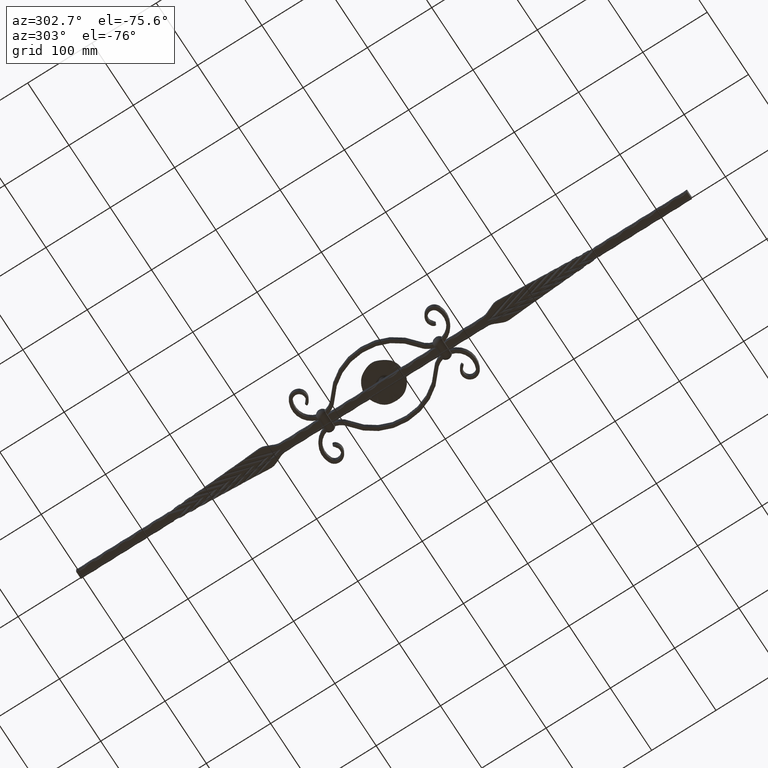
[diagram: clean part render]
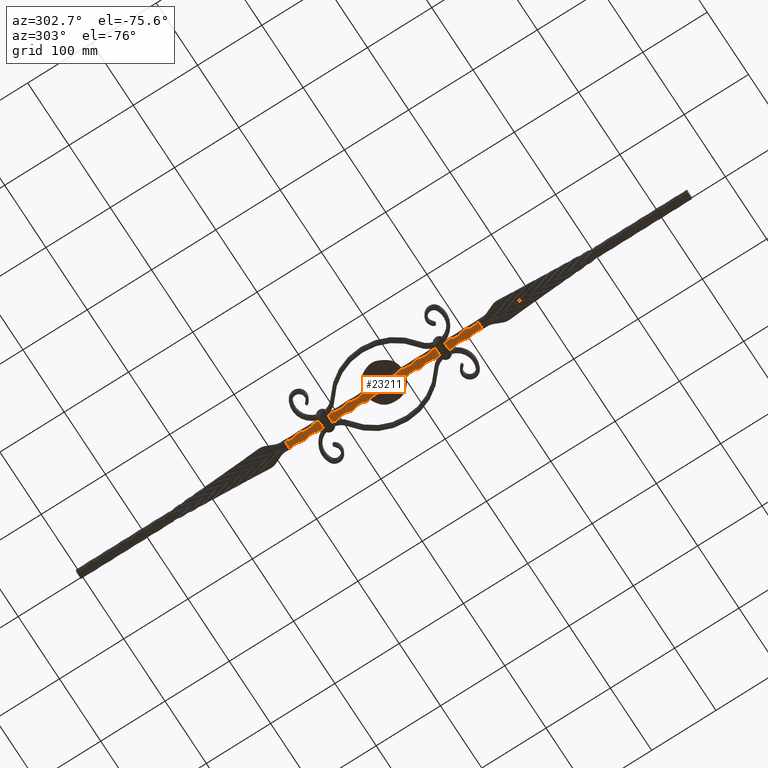
[diagram: same view with one face highlighted and labeled with its STEP entity id]
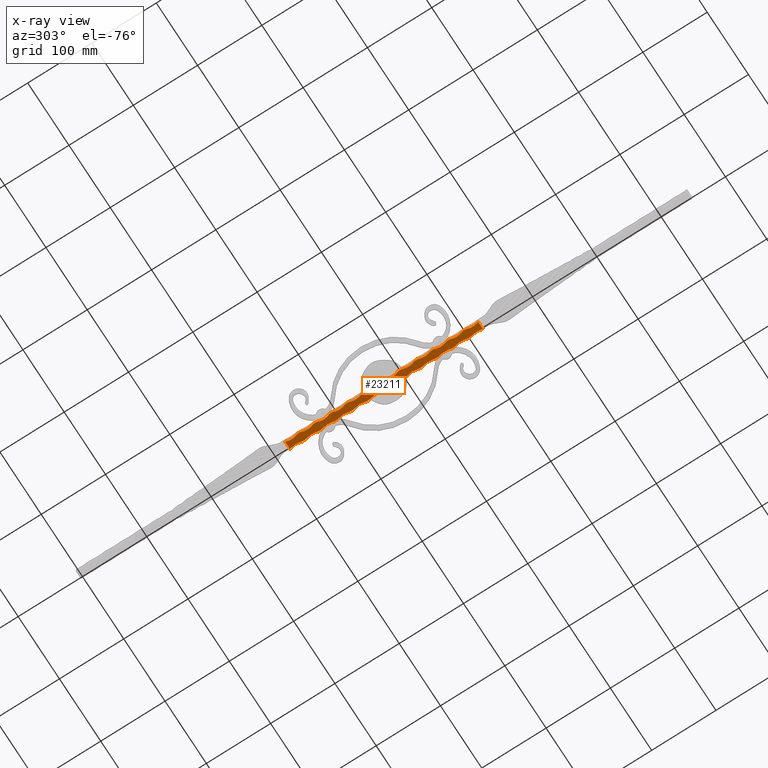
[diagram: x-ray of the same camera — body ghosted, the highlighted face saturated]
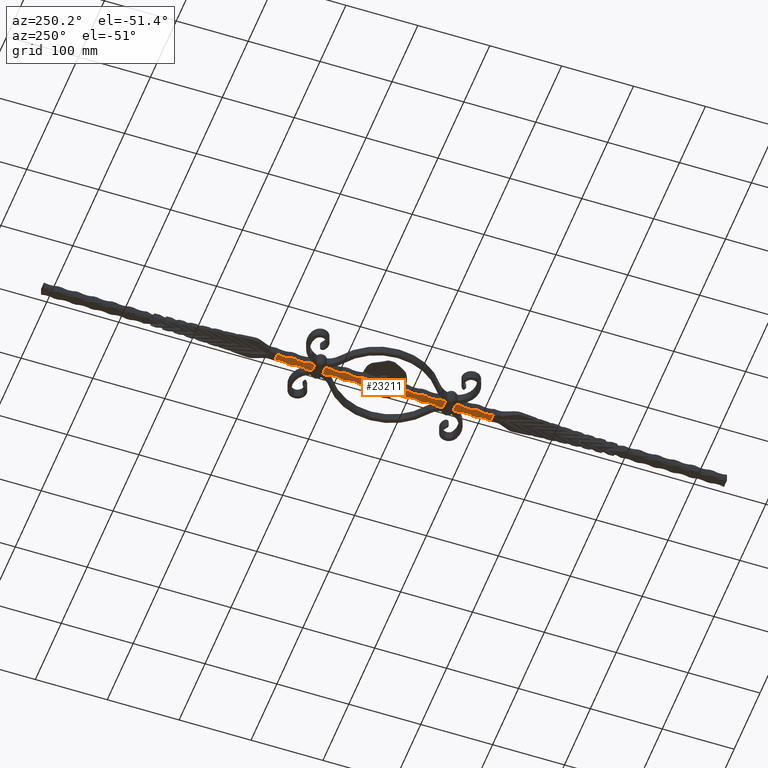
[diagram: same view with one face highlighted and labeled with its STEP entity id]
A machine part, auxiliary view. The second image highlights one B-rep face of the part: STEP entity #23211.
The next image is the same camera in x-ray: the body ghosted, the highlighted face saturated — about 0% of this face is hidden behind the body in this view.
A second angle (auxiliary view) of the same face is appended — the face is thin or edge-on in the first view.
In plain terms, the highlighted planar face has unit normal (0, 0, 1).
Its self-contained STEP definition (entity closure, byte-faithful):
#117 = EDGE_CURVE ( 'NONE', #36310, #14427, #41905, .T. ) ;
#151 = ORIENTED_EDGE ( 'NONE', *, *, #29066, .T. ) ;
#188 = EDGE_CURVE ( 'NONE', #11714, #45865, #3435, .T. ) ;
#303 = CIRCLE ( 'NONE', #4832, 26.00000000000000711 ) ;
#326 = VERTEX_POINT ( 'NONE', #29395 ) ;
#558 = ORIENTED_EDGE ( 'NONE', *, *, #21915, .T. ) ;
#667 = DIRECTION ( 'NONE',  ( -0.000000000000000000, -1.000000000000000000, 0.000000000000000000 ) ) ;
#698 = LINE ( 'NONE', #40802, #22222 ) ;
#740 = CIRCLE ( 'NONE', #30591, 26.00000000000000711 ) ;
#954 = ORIENTED_EDGE ( 'NONE', *, *, #3204, .T. ) ;
#990 = LINE ( 'NONE', #35383, #7264 ) ;
#1125 = VERTEX_POINT ( 'NONE', #26227 ) ;
#1385 = ORIENTED_EDGE ( 'NONE', *, *, #23293, .F. ) ;
#1483 = DIRECTION ( 'NONE',  ( -1.000000000000000000, 0.000000000000000000, 0.000000000000000000 ) ) ;
#1579 = DIRECTION ( 'NONE',  ( -0.000000000000000000, -1.000000000000000000, 0.000000000000000000 ) ) ;
#1987 = AXIS2_PLACEMENT_3D ( 'NONE', #12479, #5209, #41709 ) ;
#2094 = EDGE_CURVE ( 'NONE', #29439, #38071, #22547, .T. ) ;
#2096 = EDGE_CURVE ( 'NONE', #14012, #35354, #16340, .T. ) ;
#2225 = CIRCLE ( 'NONE', #42020, 26.00000000000000711 ) ;
#2227 = ORIENTED_EDGE ( 'NONE', *, *, #5396, .T. ) ;
#2396 = CARTESIAN_POINT ( 'NONE',  ( -6.000000000000001776, 537.0799999999974261, -6.000000000000012434 ) ) ;
#2589 = CARTESIAN_POINT ( 'NONE',  ( -6.000000000000001776, 612.0799999999977672, -6.000000000000012434 ) ) ;
#2698 = DIRECTION ( 'NONE',  ( -1.000000000000000000, 0.000000000000000000, 0.000000000000000000 ) ) ;
#2703 = VECTOR ( 'NONE', #5050, 1000.000000000000000 ) ;
#2736 = CARTESIAN_POINT ( 'NONE',  ( -6.000000000000001776, 662.0799999999979946, -6.000000000000012434 ) ) ;
#2779 = EDGE_CURVE ( 'NONE', #11721, #3773, #5531, .T. ) ;
#2883 = AXIS2_PLACEMENT_3D ( 'NONE', #4012, #40354, #37206 ) ;
#3021 = AXIS2_PLACEMENT_3D ( 'NONE', #30738, #41474, #44796 ) ;
#3204 = EDGE_CURVE ( 'NONE', #3773, #25899, #37175, .T. ) ;
#3235 = DIRECTION ( 'NONE',  ( -0.000000000000000000, -1.000000000000000000, 0.000000000000000000 ) ) ;
#3400 = LINE ( 'NONE', #14616, #37914 ) ;
#3435 = LINE ( 'NONE', #17462, #6333 ) ;
#3476 = CIRCLE ( 'NONE', #32041, 26.00000000000000711 ) ;
#3613 = CARTESIAN_POINT ( 'NONE',  ( -30.00000000000001066, 622.0799999999998136, -5.999999999999127809 ) ) ;
#3773 = VERTEX_POINT ( 'NONE', #23790 ) ;
#3795 = DIRECTION ( 'NONE',  ( 0.000000000000000000, 0.000000000000000000, 1.000000000000000000 ) ) ;
#4012 = CARTESIAN_POINT ( 'NONE',  ( 30.00000000000001066, 597.0799999999998136, -5.999999999999989342 ) ) ;
#4102 = VECTOR ( 'NONE', #33558, 1000.000000000000000 ) ;
#4307 = VERTEX_POINT ( 'NONE', #40106 ) ;
#4378 = LINE ( 'NONE', #27867, #34365 ) ;
#4567 = EDGE_CURVE ( 'NONE', #36310, #36780, #45631, .T. ) ;
#4606 = CIRCLE ( 'NONE', #18416, 26.00000000000000711 ) ;
#4793 = CARTESIAN_POINT ( 'NONE',  ( -6.000000000000001776, 405.0000000000000000, -5.999999999999170441 ) ) ;
#4832 = AXIS2_PLACEMENT_3D ( 'NONE', #5165, #34395, #5480 ) ;
#5050 = DIRECTION ( 'NONE',  ( -0.000000000000000000, -1.000000000000000000, 0.000000000000000000 ) ) ;
#5165 = CARTESIAN_POINT ( 'NONE',  ( -30.00000000000001066, 390.0000000000000000, -5.999999999999231726 ) ) ;
#5209 = DIRECTION ( 'NONE',  ( 0.000000000000000000, 0.000000000000000000, 1.000000000000000000 ) ) ;
#5232 = DIRECTION ( 'NONE',  ( 0.000000000000000000, 0.000000000000000000, 1.000000000000000000 ) ) ;
#5289 = EDGE_CURVE ( 'NONE', #37265, #29637, #29206, .T. ) ;
#5390 = CARTESIAN_POINT ( 'NONE',  ( -30.00000000000001066, 440.0000000000000568, -5.999999999999127809 ) ) ;
#5396 = EDGE_CURVE ( 'NONE', #25899, #4307, #10006, .T. ) ;
#5480 = DIRECTION ( 'NONE',  ( -1.000000000000000000, 0.000000000000000000, 0.000000000000000000 ) ) ;
#5531 = LINE ( 'NONE', #18966, #2703 ) ;
#5541 = AXIS2_PLACEMENT_3D ( 'NONE', #14989, #29839, #8216 ) ;
#5661 = ORIENTED_EDGE ( 'NONE', *, *, #188, .T. ) ;
#5781 = VERTEX_POINT ( 'NONE', #14982 ) ;
#6017 = CARTESIAN_POINT ( 'NONE',  ( -6.000000000000001776, 587.0799999999976535, -6.000000000000012434 ) ) ;
#6067 = CARTESIAN_POINT ( 'NONE',  ( -6.000000000000001776, 400.0000000000018758, -6.000000000000012434 ) ) ;
#6135 = CARTESIAN_POINT ( 'NONE',  ( -6.000000000000001776, 480.0000000000000568, -5.999999999999014122 ) ) ;
#6318 = VERTEX_POINT ( 'NONE', #18267 ) ;
#6333 = VECTOR ( 'NONE', #42706, 1000.000000000000000 ) ;
#6483 = CARTESIAN_POINT ( 'NONE',  ( 6.000000000000001776, 425.0000000000000568, -5.999999999999983125 ) ) ;
#6495 = DIRECTION ( 'NONE',  ( -1.000000000000000000, -2.135044278125300554E-15, 0.000000000000000000 ) ) ;
#6514 = DIRECTION ( 'NONE',  ( -0.000000000000000000, -1.000000000000000000, 0.000000000000000000 ) ) ;
#6546 = ORIENTED_EDGE ( 'NONE', *, *, #12052, .T. ) ;
#6676 = DIRECTION ( 'NONE',  ( 0.000000000000000000, 0.000000000000000000, 1.000000000000000000 ) ) ;
#6808 = VERTEX_POINT ( 'NONE', #38308 ) ;
#6829 = FACE_OUTER_BOUND ( 'NONE', #42203, .T. ) ;
#6883 = CARTESIAN_POINT ( 'NONE',  ( -6.000000000000001776, 430.0000000000000568, -5.999999999999118039 ) ) ;
#6912 = PLANE ( 'NONE',  #24999 ) ;
#7148 = VERTEX_POINT ( 'NONE', #18351 ) ;
#7161 = ORIENTED_EDGE ( 'NONE', *, *, #17448, .F. ) ;
#7200 = CARTESIAN_POINT ( 'NONE',  ( 6.000000000000001776, 405.0000000000000000, -6.000000000000012434 ) ) ;
#7241 = DIRECTION ( 'NONE',  ( 0.000000000000000000, 1.000000000000000000, 0.000000000000000000 ) ) ;
#7261 = EDGE_CURVE ( 'NONE', #24213, #11682, #8739, .T. ) ;
#7264 = VECTOR ( 'NONE', #10580, 1000.000000000000000 ) ;
#7480 = DIRECTION ( 'NONE',  ( -1.000000000000000000, 0.000000000000000000, 0.000000000000000000 ) ) ;
#7507 = CARTESIAN_POINT ( 'NONE',  ( 30.00000000000001066, 572.0799999999999272, -5.999999999999988454 ) ) ;
#7920 = AXIS2_PLACEMENT_3D ( 'NONE', #26083, #36687, #40634 ) ;
#8018 = CIRCLE ( 'NONE', #5541, 26.00000000000000711 ) ;
#8053 = CARTESIAN_POINT ( 'NONE',  ( -6.000000000000001776, 505.0000000000000000, -5.999999999998961719 ) ) ;
#8216 = DIRECTION ( 'NONE',  ( -1.000000000000000000, 0.000000000000000000, 0.000000000000000000 ) ) ;
#8406 = VERTEX_POINT ( 'NONE', #11502 ) ;
#8543 = AXIS2_PLACEMENT_3D ( 'NONE', #39914, #32818, #29196 ) ;
#8652 = EDGE_CURVE ( 'NONE', #24160, #16193, #14232, .T. ) ;
#8739 = CIRCLE ( 'NONE', #1987, 26.00000000000000711 ) ;
#8772 = EDGE_CURVE ( 'NONE', #43289, #326, #3476, .T. ) ;
#8779 = LINE ( 'NONE', #35869, #39836 ) ;
#8943 = CARTESIAN_POINT ( 'NONE',  ( 6.000000000000001776, 450.0000000000000568, -5.999999999999982236 ) ) ;
#8949 = DIRECTION ( 'NONE',  ( 0.000000000000000000, 0.000000000000000000, 1.000000000000000000 ) ) ;
#9061 = EDGE_CURVE ( 'NONE', #24160, #27609, #4606, .T. ) ;
#9065 = CARTESIAN_POINT ( 'NONE',  ( -5.999999999999998224, 531.0399999999999636, -5.999999999999999112 ) ) ;
#9237 = VECTOR ( 'NONE', #46714, 1000.000000000000000 ) ;
#9612 = EDGE_CURVE ( 'NONE', #8406, #1125, #22176, .T. ) ;
#9779 = VECTOR ( 'NONE', #3235, 1000.000000000000000 ) ;
#9803 = AXIS2_PLACEMENT_3D ( 'NONE', #17355, #41647, #1483 ) ;
#9936 = ORIENTED_EDGE ( 'NONE', *, *, #21763, .T. ) ;
#10006 = LINE ( 'NONE', #26408, #46690 ) ;
#10169 = CARTESIAN_POINT ( 'NONE',  ( -6.000000000000001776, 500.0000000000024443, -6.000000000000012434 ) ) ;
#10580 = DIRECTION ( 'NONE',  ( -0.000000000000000000, -1.000000000000000000, 0.000000000000000000 ) ) ;
#10593 = VERTEX_POINT ( 'NONE', #31260 ) ;
#10652 = AXIS2_PLACEMENT_3D ( 'NONE', #31777, #35093, #38595 ) ;
#10782 = EDGE_CURVE ( 'NONE', #12978, #16193, #15878, .T. ) ;
#10882 = DIRECTION ( 'NONE',  ( -0.000000000000000000, 0.000000000000000000, -1.000000000000000000 ) ) ;
#11057 = DIRECTION ( 'NONE',  ( 0.000000000000000000, 1.000000000000000000, 0.000000000000000000 ) ) ;
#11117 = DIRECTION ( 'NONE',  ( -0.000000000000000000, -1.000000000000000000, 0.000000000000000000 ) ) ;
#11310 = VERTEX_POINT ( 'NONE', #28715 ) ;
#11385 = DIRECTION ( 'NONE',  ( -1.000000000000000000, -4.270088556250601108E-15, 0.000000000000000000 ) ) ;
#11438 = CIRCLE ( 'NONE', #20017, 26.00000000000000711 ) ;
#11483 = EDGE_CURVE ( 'NONE', #44817, #45865, #44648, .T. ) ;
#11498 = ORIENTED_EDGE ( 'NONE', *, *, #8652, .T. ) ;
#11502 = CARTESIAN_POINT ( 'NONE',  ( -5.593232469096428794, 681.0415678702127025, -5.999999999999231726 ) ) ;
#11682 = VERTEX_POINT ( 'NONE', #7200 ) ;
#11714 = VERTEX_POINT ( 'NONE', #31833 ) ;
#11721 = VERTEX_POINT ( 'NONE', #35618 ) ;
#11774 = VERTEX_POINT ( 'NONE', #36535 ) ;
#11798 = DIRECTION ( 'NONE',  ( 0.000000000000000000, 1.000000000000000000, 0.000000000000000000 ) ) ;
#11876 = AXIS2_PLACEMENT_3D ( 'NONE', #5390, #6676, #16957 ) ;
#12052 = EDGE_CURVE ( 'NONE', #39904, #22089, #46297, .T. ) ;
#12479 = CARTESIAN_POINT ( 'NONE',  ( 30.00000000000001066, 415.0000000000000568, -5.999999999999992006 ) ) ;
#12522 = ORIENTED_EDGE ( 'NONE', *, *, #46376, .F. ) ;
#12530 = VERTEX_POINT ( 'NONE', #41049 ) ;
#12589 = CARTESIAN_POINT ( 'NONE',  ( -6.000000000000001776, 557.0799999999999272, -5.999999999998961719 ) ) ;
#12805 = CARTESIAN_POINT ( 'NONE',  ( 6.000000000000001776, 531.0399999999999636, -5.999999999999999112 ) ) ;
#12810 = DIRECTION ( 'NONE',  ( 0.000000000000000000, 1.000000000000000000, 0.000000000000000000 ) ) ;
#12814 = LINE ( 'NONE', #44257, #20765 ) ;
#12958 = CARTESIAN_POINT ( 'NONE',  ( -6.000000000000001776, 607.0799999999998136, -5.999999999999065636 ) ) ;
#12978 = VERTEX_POINT ( 'NONE', #15572 ) ;
#13110 = EDGE_CURVE ( 'NONE', #4307, #19664, #25878, .T. ) ;
#13207 = EDGE_CURVE ( 'NONE', #11682, #43289, #4378, .T. ) ;
#13285 = CARTESIAN_POINT ( 'NONE',  ( 6.000000000000001776, 537.0799999999999272, -5.999999999999977796 ) ) ;
#13360 = EDGE_CURVE ( 'NONE', #44817, #27609, #698, .T. ) ;
#13367 = VECTOR ( 'NONE', #25567, 1000.000000000000000 ) ;
#13708 = DIRECTION ( 'NONE',  ( 0.000000000000000000, 0.000000000000000000, 1.000000000000000000 ) ) ;
#14012 = VERTEX_POINT ( 'NONE', #45799 ) ;
#14232 = LINE ( 'NONE', #23100, #14827 ) ;
#14263 = CIRCLE ( 'NONE', #8543, 26.00000000000000711 ) ;
#14427 = VERTEX_POINT ( 'NONE', #38487 ) ;
#14473 = ORIENTED_EDGE ( 'NONE', *, *, #33553, .F. ) ;
#14616 = CARTESIAN_POINT ( 'NONE',  ( -5.999999999999998224, 381.0384321297871679, -6.000000000000002665 ) ) ;
#14827 = VECTOR ( 'NONE', #12810, 1000.000000000000000 ) ;
#14982 = CARTESIAN_POINT ( 'NONE',  ( 6.000000000000001776, 607.0799999999998136, -6.000000000000012434 ) ) ;
#14989 = CARTESIAN_POINT ( 'NONE',  ( 30.00000000000001066, 515.0000000000000000, -5.999999999999986677 ) ) ;
#15100 = ORIENTED_EDGE ( 'NONE', *, *, #35432, .F. ) ;
#15410 = VECTOR ( 'NONE', #667, 1000.000000000000000 ) ;
#15453 = EDGE_CURVE ( 'NONE', #35354, #6318, #30402, .T. ) ;
#15572 = CARTESIAN_POINT ( 'NONE',  ( -6.000000000000001776, 657.0799999999999272, -5.999999999999170441 ) ) ;
#15878 = CIRCLE ( 'NONE', #42701, 26.00000000000000711 ) ;
#15954 = VECTOR ( 'NONE', #6514, 1000.000000000000000 ) ;
#16030 = EDGE_CURVE ( 'NONE', #11774, #37265, #12814, .T. ) ;
#16105 = CARTESIAN_POINT ( 'NONE',  ( -30.00000000000001066, 490.0000000000000568, -5.999999999999023892 ) ) ;
#16146 = AXIS2_PLACEMENT_3D ( 'NONE', #41976, #16559, #38364 ) ;
#16193 = VERTEX_POINT ( 'NONE', #24029 ) ;
#16340 = CIRCLE ( 'NONE', #36332, 26.00000000000000711 ) ;
#16559 = DIRECTION ( 'NONE',  ( 0.000000000000000000, 0.000000000000000000, 1.000000000000000000 ) ) ;
#16957 = DIRECTION ( 'NONE',  ( -1.000000000000000000, 4.270088556250601108E-15, 0.000000000000000000 ) ) ;
#16983 = ORIENTED_EDGE ( 'NONE', *, *, #117, .F. ) ;
#17291 = CARTESIAN_POINT ( 'NONE',  ( -6.000000000000001776, 562.0799999999974261, -6.000000000000012434 ) ) ;
#17355 = CARTESIAN_POINT ( 'NONE',  ( -30.00000000000001066, 465.0000000000000000, -5.999999999999075406 ) ) ;
#17413 = AXIS2_PLACEMENT_3D ( 'NONE', #16105, #20369, #44999 ) ;
#17448 = EDGE_CURVE ( 'NONE', #12530, #14012, #38177, .T. ) ;
#17462 = CARTESIAN_POINT ( 'NONE',  ( -5.999999999999998224, 531.0399999999999636, -5.999999999999999112 ) ) ;
#17650 = CARTESIAN_POINT ( 'NONE',  ( -5.999999999999998224, 531.0399999999999636, -5.999999999999999112 ) ) ;
#17947 = AXIS2_PLACEMENT_3D ( 'NONE', #24485, #13708, #6495 ) ;
#18085 = VERTEX_POINT ( 'NONE', #34800 ) ;
#18267 = CARTESIAN_POINT ( 'NONE',  ( 6.000000000000001776, 662.0799999999999272, -5.999999999999984901 ) ) ;
#18351 = CARTESIAN_POINT ( 'NONE',  ( 6.000000000000001776, 430.0000000000000568, -6.000000000000012434 ) ) ;
#18416 = AXIS2_PLACEMENT_3D ( 'NONE', #3613, #10882, #29215 ) ;
#18725 = ORIENTED_EDGE ( 'NONE', *, *, #11483, .F. ) ;
#18966 = CARTESIAN_POINT ( 'NONE',  ( 6.000000000000001776, 531.0399999999999636, -5.999999999999999112 ) ) ;
#19362 = LINE ( 'NONE', #17650, #9779 ) ;
#19664 = VERTEX_POINT ( 'NONE', #35493 ) ;
#20017 = AXIS2_PLACEMENT_3D ( 'NONE', #30176, #37455, #33798 ) ;
#20030 = VECTOR ( 'NONE', #43328, 1000.000000000000000 ) ;
#20095 = EDGE_CURVE ( 'NONE', #6808, #12530, #20501, .T. ) ;
#20284 = VECTOR ( 'NONE', #11117, 1000.000000000000000 ) ;
#20369 = DIRECTION ( 'NONE',  ( 0.000000000000000000, 0.000000000000000000, 1.000000000000000000 ) ) ;
#20416 = EDGE_CURVE ( 'NONE', #45753, #10593, #26680, .T. ) ;
#20501 = CIRCLE ( 'NONE', #7920, 26.00000000000000711 ) ;
#20765 = VECTOR ( 'NONE', #37316, 1000.000000000000000 ) ;
#20883 = ORIENTED_EDGE ( 'NONE', *, *, #4567, .T. ) ;
#21763 = EDGE_CURVE ( 'NONE', #45502, #10593, #33435, .T. ) ;
#21915 = EDGE_CURVE ( 'NONE', #37660, #11721, #8018, .T. ) ;
#21937 = DIRECTION ( 'NONE',  ( 0.000000000000000000, 1.000000000000000000, 0.000000000000000000 ) ) ;
#22089 = VERTEX_POINT ( 'NONE', #29996 ) ;
#22091 = CARTESIAN_POINT ( 'NONE',  ( 6.000000000000001776, 562.0799999999999272, -5.999999999999979572 ) ) ;
#22140 = ORIENTED_EDGE ( 'NONE', *, *, #43449, .T. ) ;
#22148 = DIRECTION ( 'NONE',  ( -0.000000000000000000, 0.000000000000000000, -1.000000000000000000 ) ) ;
#22169 = DIRECTION ( 'NONE',  ( -0.000000000000000000, 0.000000000000000000, -1.000000000000000000 ) ) ;
#22176 = LINE ( 'NONE', #44011, #45336 ) ;
#22222 = VECTOR ( 'NONE', #30057, 1000.000000000000000 ) ;
#22351 = VERTEX_POINT ( 'NONE', #13285 ) ;
#22547 = LINE ( 'NONE', #28668, #20284 ) ;
#22623 = CIRCLE ( 'NONE', #36451, 26.00000000000000711 ) ;
#22715 = ORIENTED_EDGE ( 'NONE', *, *, #32739, .T. ) ;
#22783 = CARTESIAN_POINT ( 'NONE',  ( 6.000000000000001776, 400.0000000000000000, -5.999999999999984901 ) ) ;
#22981 = DIRECTION ( 'NONE',  ( 1.000000000000000000, 0.000000000000000000, 0.000000000000000000 ) ) ;
#23060 = EDGE_CURVE ( 'NONE', #8406, #29693, #22623, .T. ) ;
#23095 = CARTESIAN_POINT ( 'NONE',  ( -6.000000000000001776, 455.0000000000000000, -5.999999999999065636 ) ) ;
#23100 = CARTESIAN_POINT ( 'NONE',  ( -5.999999999999998224, 531.0399999999999636, -5.999999999999999112 ) ) ;
#23211 = ADVANCED_FACE ( 'NONE', ( #6829 ), #6912, .F. ) ;
#23280 = CARTESIAN_POINT ( 'NONE',  ( 6.000000000000001776, 480.0000000000000000, -6.000000000000012434 ) ) ;
#23293 = EDGE_CURVE ( 'NONE', #26004, #22089, #27843, .T. ) ;
#23439 = VECTOR ( 'NONE', #11798, 1000.000000000000000 ) ;
#23570 = DIRECTION ( 'NONE',  ( -1.000000000000000000, 0.000000000000000000, 0.000000000000000000 ) ) ;
#23742 = ORIENTED_EDGE ( 'NONE', *, *, #13207, .T. ) ;
#23790 = CARTESIAN_POINT ( 'NONE',  ( 6.000000000000001776, 500.0000000000000000, -5.999999999999979572 ) ) ;
#23825 = CIRCLE ( 'NONE', #44694, 26.00000000000000711 ) ;
#23882 = DIRECTION ( 'NONE',  ( -0.000000000000000000, -1.000000000000000000, 0.000000000000000000 ) ) ;
#24029 = CARTESIAN_POINT ( 'NONE',  ( -6.000000000000001776, 637.0799999999978809, -6.000000000000012434 ) ) ;
#24030 = ORIENTED_EDGE ( 'NONE', *, *, #36994, .F. ) ;
#24160 = VERTEX_POINT ( 'NONE', #39001 ) ;
#24213 = VERTEX_POINT ( 'NONE', #6483 ) ;
#24296 = ORIENTED_EDGE ( 'NONE', *, *, #2096, .F. ) ;
#24381 = CARTESIAN_POINT ( 'NONE',  ( 30.00000000000001066, 547.0799999999999272, -5.999999999999986677 ) ) ;
#24485 = CARTESIAN_POINT ( 'NONE',  ( -30.00000000000001066, 415.0000000000000568, -5.999999999999179323 ) ) ;
#24530 = DIRECTION ( 'NONE',  ( -0.000000000000000000, 0.000000000000000000, -1.000000000000000000 ) ) ;
#24894 = DIRECTION ( 'NONE',  ( 0.000000000000000000, 0.000000000000000000, 1.000000000000000000 ) ) ;
#24937 = EDGE_CURVE ( 'NONE', #22351, #11774, #23825, .T. ) ;
#24983 = CARTESIAN_POINT ( 'NONE',  ( 6.000000000000001776, 657.0799999999999272, -6.000000000000012434 ) ) ;
#24999 = AXIS2_PLACEMENT_3D ( 'NONE', #28829, #24894, #39714 ) ;
#25032 = CARTESIAN_POINT ( 'NONE',  ( -5.999999999999998224, 531.0399999999999636, -5.999999999999999112 ) ) ;
#25198 = DIRECTION ( 'NONE',  ( -0.000000000000000000, 0.000000000000000000, -1.000000000000000000 ) ) ;
#25353 = ORIENTED_EDGE ( 'NONE', *, *, #38694, .T. ) ;
#25567 = DIRECTION ( 'NONE',  ( 0.000000000000000000, 1.000000000000000000, 0.000000000000000000 ) ) ;
#25641 = DIRECTION ( 'NONE',  ( -1.000000000000000000, 0.000000000000000000, 0.000000000000000000 ) ) ;
#25878 = CIRCLE ( 'NONE', #43662, 26.00000000000000711 ) ;
#25897 = ORIENTED_EDGE ( 'NONE', *, *, #2779, .T. ) ;
#25899 = VERTEX_POINT ( 'NONE', #23280 ) ;
#25961 = ORIENTED_EDGE ( 'NONE', *, *, #20416, .F. ) ;
#26004 = VERTEX_POINT ( 'NONE', #2396 ) ;
#26012 = ORIENTED_EDGE ( 'NONE', *, *, #8772, .T. ) ;
#26083 = CARTESIAN_POINT ( 'NONE',  ( 30.00000000000001066, 622.0799999999998136, -5.999999999999991118 ) ) ;
#26121 = EDGE_CURVE ( 'NONE', #41712, #7148, #2225, .T. ) ;
#26227 = CARTESIAN_POINT ( 'NONE',  ( 5.593232469096428794, 681.0415678702127025, -5.999999999999993783 ) ) ;
#26408 = CARTESIAN_POINT ( 'NONE',  ( 6.000000000000001776, 531.0399999999999636, -5.999999999999999112 ) ) ;
#26680 = LINE ( 'NONE', #28424, #15954 ) ;
#27030 = ORIENTED_EDGE ( 'NONE', *, *, #23060, .F. ) ;
#27195 = VECTOR ( 'NONE', #1579, 1000.000000000000000 ) ;
#27609 = VERTEX_POINT ( 'NONE', #2589 ) ;
#27843 = LINE ( 'NONE', #43818, #15410 ) ;
#27867 = CARTESIAN_POINT ( 'NONE',  ( 6.000000000000001776, 531.0399999999999636, -5.999999999999999112 ) ) ;
#28357 = CARTESIAN_POINT ( 'NONE',  ( -30.00000000000001066, 672.0799999999999272, -5.999999999999231726 ) ) ;
#28424 = CARTESIAN_POINT ( 'NONE',  ( -5.999999999999998224, 531.0399999999999636, -5.999999999999999112 ) ) ;
#28668 = CARTESIAN_POINT ( 'NONE',  ( -5.999999999999998224, 531.0399999999999636, -5.999999999999999112 ) ) ;
#28715 = CARTESIAN_POINT ( 'NONE',  ( -6.000000000000001776, 425.0000000000019895, -6.000000000000012434 ) ) ;
#28722 = ORIENTED_EDGE ( 'NONE', *, *, #16030, .F. ) ;
#28829 = CARTESIAN_POINT ( 'NONE',  ( -5.999999999999998224, 200.0000000000000000, -6.000000000000002665 ) ) ;
#29066 = EDGE_CURVE ( 'NONE', #39509, #38071, #303, .T. ) ;
#29196 = DIRECTION ( 'NONE',  ( -1.000000000000000000, 4.270088556250601108E-15, 0.000000000000000000 ) ) ;
#29206 = CIRCLE ( 'NONE', #36456, 26.00000000000000711 ) ;
#29215 = DIRECTION ( 'NONE',  ( -1.000000000000000000, -4.270088556250601108E-15, 0.000000000000000000 ) ) ;
#29395 = CARTESIAN_POINT ( 'NONE',  ( 5.593232469096428794, 381.0384321297871679, -5.999999999999993783 ) ) ;
#29439 = VERTEX_POINT ( 'NONE', #4793 ) ;
#29637 = VERTEX_POINT ( 'NONE', #45418 ) ;
#29668 = CARTESIAN_POINT ( 'NONE',  ( 6.000000000000001776, 531.0399999999999636, -5.999999999999999112 ) ) ;
#29693 = VERTEX_POINT ( 'NONE', #2736 ) ;
#29839 = DIRECTION ( 'NONE',  ( 0.000000000000000000, 0.000000000000000000, 1.000000000000000000 ) ) ;
#29893 = DIRECTION ( 'NONE',  ( -0.000000000000000000, -1.000000000000000000, 0.000000000000000000 ) ) ;
#29996 = CARTESIAN_POINT ( 'NONE',  ( -6.000000000000001776, 525.0000000000025011, -6.000000000000012434 ) ) ;
#30057 = DIRECTION ( 'NONE',  ( 0.000000000000000000, 1.000000000000000000, 0.000000000000000000 ) ) ;
#30176 = CARTESIAN_POINT ( 'NONE',  ( -30.00000000000001066, 572.0799999999999272, -5.999999999999023892 ) ) ;
#30194 = EDGE_CURVE ( 'NONE', #12978, #29693, #8779, .T. ) ;
#30368 = ORIENTED_EDGE ( 'NONE', *, *, #10782, .F. ) ;
#30402 = LINE ( 'NONE', #32790, #37748 ) ;
#30591 = AXIS2_PLACEMENT_3D ( 'NONE', #43626, #22148, #40145 ) ;
#30738 = CARTESIAN_POINT ( 'NONE',  ( -30.00000000000001066, 597.0799999999998136, -5.999999999999075406 ) ) ;
#30879 = CARTESIAN_POINT ( 'NONE',  ( 30.00000000000001066, 465.0000000000000000, -5.999999999999989342 ) ) ;
#30983 = ORIENTED_EDGE ( 'NONE', *, *, #37214, .F. ) ;
#31141 = CARTESIAN_POINT ( 'NONE',  ( -5.593232469096428794, 381.0384321297871679, -5.999999999999231726 ) ) ;
#31168 = CIRCLE ( 'NONE', #17947, 26.00000000000000711 ) ;
#31260 = CARTESIAN_POINT ( 'NONE',  ( -6.000000000000001776, 450.0000000000021600, -6.000000000000012434 ) ) ;
#31397 = ORIENTED_EDGE ( 'NONE', *, *, #13110, .T. ) ;
#31576 = ORIENTED_EDGE ( 'NONE', *, *, #2094, .F. ) ;
#31777 = CARTESIAN_POINT ( 'NONE',  ( -30.00000000000001066, 515.0000000000000000, -5.999999999998971489 ) ) ;
#31833 = CARTESIAN_POINT ( 'NONE',  ( -6.000000000000001776, 582.0799999999999272, -5.999999999999014122 ) ) ;
#31894 = ORIENTED_EDGE ( 'NONE', *, *, #37701, .F. ) ;
#32005 = CARTESIAN_POINT ( 'NONE',  ( 6.000000000000001776, 525.0000000000000000, -5.999999999999977796 ) ) ;
#32041 = AXIS2_PLACEMENT_3D ( 'NONE', #37626, #5232, #23570 ) ;
#32167 = ORIENTED_EDGE ( 'NONE', *, *, #7261, .T. ) ;
#32280 = DIRECTION ( 'NONE',  ( -0.000000000000000000, 0.000000000000000000, -1.000000000000000000 ) ) ;
#32308 = ORIENTED_EDGE ( 'NONE', *, *, #20095, .F. ) ;
#32311 = ORIENTED_EDGE ( 'NONE', *, *, #36786, .F. ) ;
#32436 = DIRECTION ( 'NONE',  ( -0.000000000000000000, -1.000000000000000000, 0.000000000000000000 ) ) ;
#32739 = EDGE_CURVE ( 'NONE', #19664, #41712, #43708, .T. ) ;
#32790 = CARTESIAN_POINT ( 'NONE',  ( 6.000000000000001776, 531.0399999999999636, -5.999999999999999112 ) ) ;
#32818 = DIRECTION ( 'NONE',  ( -0.000000000000000000, 0.000000000000000000, -1.000000000000000000 ) ) ;
#32819 = CARTESIAN_POINT ( 'NONE',  ( -5.999999999999998224, 531.0399999999999636, -5.999999999999999112 ) ) ;
#33041 = CARTESIAN_POINT ( 'NONE',  ( -30.00000000000001066, 647.0799999999999272, -5.999999999999179323 ) ) ;
#33064 = ORIENTED_EDGE ( 'NONE', *, *, #26121, .T. ) ;
#33071 = ORIENTED_EDGE ( 'NONE', *, *, #24937, .F. ) ;
#33435 = CIRCLE ( 'NONE', #11876, 26.00000000000000711 ) ;
#33553 = EDGE_CURVE ( 'NONE', #18085, #5781, #39337, .T. ) ;
#33558 = DIRECTION ( 'NONE',  ( -0.000000000000000000, -1.000000000000000000, 0.000000000000000000 ) ) ;
#33776 = VECTOR ( 'NONE', #23882, 1000.000000000000000 ) ;
#33798 = DIRECTION ( 'NONE',  ( -1.000000000000000000, 4.270088556250601108E-15, 0.000000000000000000 ) ) ;
#34166 = LINE ( 'NONE', #37104, #23439 ) ;
#34365 = VECTOR ( 'NONE', #32436, 1000.000000000000000 ) ;
#34395 = DIRECTION ( 'NONE',  ( 0.000000000000000000, 0.000000000000000000, 1.000000000000000000 ) ) ;
#34800 = CARTESIAN_POINT ( 'NONE',  ( 6.000000000000001776, 587.0799999999998136, -5.999999999999980460 ) ) ;
#35093 = DIRECTION ( 'NONE',  ( 0.000000000000000000, 0.000000000000000000, 1.000000000000000000 ) ) ;
#35173 = ORIENTED_EDGE ( 'NONE', *, *, #30194, .T. ) ;
#35348 = LINE ( 'NONE', #32819, #13367 ) ;
#35354 = VERTEX_POINT ( 'NONE', #24983 ) ;
#35383 = CARTESIAN_POINT ( 'NONE',  ( 6.000000000000001776, 531.0399999999999636, -5.999999999999999112 ) ) ;
#35432 = EDGE_CURVE ( 'NONE', #29637, #18085, #34166, .T. ) ;
#35493 = CARTESIAN_POINT ( 'NONE',  ( 6.000000000000001776, 455.0000000000000000, -6.000000000000012434 ) ) ;
#35618 = CARTESIAN_POINT ( 'NONE',  ( 6.000000000000001776, 505.0000000000000000, -6.000000000000012434 ) ) ;
#35829 = CARTESIAN_POINT ( 'NONE',  ( 6.000000000000001776, 531.0399999999999636, -5.999999999999999112 ) ) ;
#35869 = CARTESIAN_POINT ( 'NONE',  ( -5.999999999999998224, 531.0399999999999636, -5.999999999999999112 ) ) ;
#36121 = ORIENTED_EDGE ( 'NONE', *, *, #38550, .T. ) ;
#36310 = VERTEX_POINT ( 'NONE', #6135 ) ;
#36332 = AXIS2_PLACEMENT_3D ( 'NONE', #36399, #25198, #39721 ) ;
#36399 = CARTESIAN_POINT ( 'NONE',  ( 30.00000000000001066, 647.0799999999999272, -5.999999999999992006 ) ) ;
#36451 = AXIS2_PLACEMENT_3D ( 'NONE', #28357, #38805, #46375 ) ;
#36456 = AXIS2_PLACEMENT_3D ( 'NONE', #7507, #32280, #25641 ) ;
#36479 = ORIENTED_EDGE ( 'NONE', *, *, #43668, .T. ) ;
#36535 = CARTESIAN_POINT ( 'NONE',  ( 6.000000000000001776, 557.0799999999999272, -6.000000000000012434 ) ) ;
#36687 = DIRECTION ( 'NONE',  ( -0.000000000000000000, 0.000000000000000000, -1.000000000000000000 ) ) ;
#36780 = VERTEX_POINT ( 'NONE', #10169 ) ;
#36786 = EDGE_CURVE ( 'NONE', #6318, #1125, #740, .T. ) ;
#36994 = EDGE_CURVE ( 'NONE', #11714, #38085, #11438, .T. ) ;
#37104 = CARTESIAN_POINT ( 'NONE',  ( 6.000000000000001776, 531.0399999999999636, -5.999999999999999112 ) ) ;
#37175 = CIRCLE ( 'NONE', #16146, 26.00000000000000711 ) ;
#37206 = DIRECTION ( 'NONE',  ( -1.000000000000000000, 0.000000000000000000, 0.000000000000000000 ) ) ;
#37214 = EDGE_CURVE ( 'NONE', #5781, #6808, #42582, .T. ) ;
#37217 = CARTESIAN_POINT ( 'NONE',  ( 6.000000000000001776, 531.0399999999999636, -5.999999999999999112 ) ) ;
#37251 = EDGE_CURVE ( 'NONE', #46027, #26004, #14263, .T. ) ;
#37265 = VERTEX_POINT ( 'NONE', #22091 ) ;
#37316 = DIRECTION ( 'NONE',  ( 0.000000000000000000, 1.000000000000000000, 0.000000000000000000 ) ) ;
#37366 = CIRCLE ( 'NONE', #9803, 26.00000000000000711 ) ;
#37455 = DIRECTION ( 'NONE',  ( -0.000000000000000000, 0.000000000000000000, -1.000000000000000000 ) ) ;
#37626 = CARTESIAN_POINT ( 'NONE',  ( 30.00000000000001066, 390.0000000000000000, -5.999999999999993783 ) ) ;
#37660 = VERTEX_POINT ( 'NONE', #32005 ) ;
#37701 = EDGE_CURVE ( 'NONE', #45502, #11310, #19362, .T. ) ;
#37748 = VECTOR ( 'NONE', #7241, 1000.000000000000000 ) ;
#37914 = VECTOR ( 'NONE', #39884, 1000.000000000000000 ) ;
#38071 = VERTEX_POINT ( 'NONE', #6067 ) ;
#38085 = VERTEX_POINT ( 'NONE', #17291 ) ;
#38177 = LINE ( 'NONE', #29668, #40416 ) ;
#38308 = CARTESIAN_POINT ( 'NONE',  ( 6.000000000000001776, 612.0799999999998136, -5.999999999999982236 ) ) ;
#38364 = DIRECTION ( 'NONE',  ( -1.000000000000000000, 0.000000000000000000, 0.000000000000000000 ) ) ;
#38487 = CARTESIAN_POINT ( 'NONE',  ( -6.000000000000001776, 475.0000000000022737, -6.000000000000012434 ) ) ;
#38550 = EDGE_CURVE ( 'NONE', #29439, #11310, #31168, .T. ) ;
#38595 = DIRECTION ( 'NONE',  ( -1.000000000000000000, -4.270088556250601108E-15, 0.000000000000000000 ) ) ;
#38694 = EDGE_CURVE ( 'NONE', #45753, #14427, #37366, .T. ) ;
#38801 = EDGE_CURVE ( 'NONE', #39509, #326, #3400, .T. ) ;
#38805 = DIRECTION ( 'NONE',  ( -0.000000000000000000, 0.000000000000000000, -1.000000000000000000 ) ) ;
#39001 = CARTESIAN_POINT ( 'NONE',  ( -6.000000000000001776, 632.0799999999998136, -5.999999999999118039 ) ) ;
#39288 = ORIENTED_EDGE ( 'NONE', *, *, #9612, .T. ) ;
#39337 = CIRCLE ( 'NONE', #2883, 26.00000000000000711 ) ;
#39509 = VERTEX_POINT ( 'NONE', #31141 ) ;
#39714 = DIRECTION ( 'NONE',  ( -1.000000000000000000, 0.000000000000000000, 0.000000000000000000 ) ) ;
#39721 = DIRECTION ( 'NONE',  ( -1.000000000000000000, 0.000000000000000000, 0.000000000000000000 ) ) ;
#39836 = VECTOR ( 'NONE', #11057, 1000.000000000000000 ) ;
#39884 = DIRECTION ( 'NONE',  ( 1.000000000000000000, 0.000000000000000000, 0.000000000000000000 ) ) ;
#39904 = VERTEX_POINT ( 'NONE', #8053 ) ;
#39914 = CARTESIAN_POINT ( 'NONE',  ( -30.00000000000001066, 547.0799999999999272, -5.999999999998971489 ) ) ;
#40106 = CARTESIAN_POINT ( 'NONE',  ( 6.000000000000001776, 475.0000000000000568, -5.999999999999980460 ) ) ;
#40145 = DIRECTION ( 'NONE',  ( -1.000000000000000000, 0.000000000000000000, 0.000000000000000000 ) ) ;
#40169 = ORIENTED_EDGE ( 'NONE', *, *, #38801, .F. ) ;
#40354 = DIRECTION ( 'NONE',  ( -0.000000000000000000, 0.000000000000000000, -1.000000000000000000 ) ) ;
#40363 = LINE ( 'NONE', #25032, #20030 ) ;
#40366 = ORIENTED_EDGE ( 'NONE', *, *, #42545, .T. ) ;
#40416 = VECTOR ( 'NONE', #21937, 1000.000000000000000 ) ;
#40591 = ORIENTED_EDGE ( 'NONE', *, *, #15453, .F. ) ;
#40634 = DIRECTION ( 'NONE',  ( -1.000000000000000000, 0.000000000000000000, 0.000000000000000000 ) ) ;
#40802 = CARTESIAN_POINT ( 'NONE',  ( -5.999999999999998224, 531.0399999999999636, -5.999999999999999112 ) ) ;
#40911 = ORIENTED_EDGE ( 'NONE', *, *, #13360, .T. ) ;
#41049 = CARTESIAN_POINT ( 'NONE',  ( 6.000000000000001776, 632.0799999999998136, -6.000000000000012434 ) ) ;
#41474 = DIRECTION ( 'NONE',  ( -0.000000000000000000, 0.000000000000000000, -1.000000000000000000 ) ) ;
#41647 = DIRECTION ( 'NONE',  ( 0.000000000000000000, 0.000000000000000000, 1.000000000000000000 ) ) ;
#41709 = DIRECTION ( 'NONE',  ( -1.000000000000000000, 0.000000000000000000, 0.000000000000000000 ) ) ;
#41712 = VERTEX_POINT ( 'NONE', #8943 ) ;
#41905 = LINE ( 'NONE', #9065, #27195 ) ;
#41976 = CARTESIAN_POINT ( 'NONE',  ( 30.00000000000001066, 490.0000000000000568, -5.999999999999988454 ) ) ;
#42020 = AXIS2_PLACEMENT_3D ( 'NONE', #43771, #3795, #7480 ) ;
#42203 = EDGE_LOOP ( 'NONE', ( #151, #31576, #36121, #31894, #9936, #25961, #25353, #16983, #20883, #12522, #6546, #1385, #44662, #40366, #24030, #5661, #18725, #40911, #46719, #11498, #30368, #35173, #27030, #39288, #32311, #40591, #24296, #7161, #32308, #30983, #14473, #15100, #43863, #28722, #33071, #36479, #558, #25897, #954, #2227, #31397, #22715, #33064, #22140, #32167, #23742, #26012, #40169 ) ) ;
#42545 = EDGE_CURVE ( 'NONE', #46027, #38085, #35348, .T. ) ;
#42582 = LINE ( 'NONE', #35829, #9237 ) ;
#42701 = AXIS2_PLACEMENT_3D ( 'NONE', #33041, #22169, #11385 ) ;
#42706 = DIRECTION ( 'NONE',  ( 0.000000000000000000, 1.000000000000000000, 0.000000000000000000 ) ) ;
#43289 = VERTEX_POINT ( 'NONE', #22783 ) ;
#43328 = DIRECTION ( 'NONE',  ( -0.000000000000000000, -1.000000000000000000, 0.000000000000000000 ) ) ;
#43402 = LINE ( 'NONE', #12805, #33776 ) ;
#43449 = EDGE_CURVE ( 'NONE', #7148, #24213, #43402, .T. ) ;
#43626 = CARTESIAN_POINT ( 'NONE',  ( 30.00000000000001066, 672.0799999999999272, -5.999999999999993783 ) ) ;
#43662 = AXIS2_PLACEMENT_3D ( 'NONE', #30879, #8949, #44774 ) ;
#43668 = EDGE_CURVE ( 'NONE', #22351, #37660, #990, .T. ) ;
#43708 = LINE ( 'NONE', #37217, #4102 ) ;
#43771 = CARTESIAN_POINT ( 'NONE',  ( 30.00000000000001066, 440.0000000000000568, -5.999999999999991118 ) ) ;
#43818 = CARTESIAN_POINT ( 'NONE',  ( -5.999999999999998224, 531.0399999999999636, -5.999999999999999112 ) ) ;
#43863 = ORIENTED_EDGE ( 'NONE', *, *, #5289, .F. ) ;
#44011 = CARTESIAN_POINT ( 'NONE',  ( -5.999999999999998224, 681.0415678702127025, -6.000000000000002665 ) ) ;
#44257 = CARTESIAN_POINT ( 'NONE',  ( 6.000000000000001776, 531.0399999999999636, -5.999999999999999112 ) ) ;
#44648 = CIRCLE ( 'NONE', #3021, 26.00000000000000711 ) ;
#44662 = ORIENTED_EDGE ( 'NONE', *, *, #37251, .F. ) ;
#44694 = AXIS2_PLACEMENT_3D ( 'NONE', #24381, #24530, #2698 ) ;
#44774 = DIRECTION ( 'NONE',  ( -1.000000000000000000, 0.000000000000000000, 0.000000000000000000 ) ) ;
#44796 = DIRECTION ( 'NONE',  ( -1.000000000000000000, 0.000000000000000000, 0.000000000000000000 ) ) ;
#44817 = VERTEX_POINT ( 'NONE', #12958 ) ;
#44999 = DIRECTION ( 'NONE',  ( -1.000000000000000000, -4.270088556250601108E-15, 0.000000000000000000 ) ) ;
#45336 = VECTOR ( 'NONE', #22981, 1000.000000000000000 ) ;
#45418 = CARTESIAN_POINT ( 'NONE',  ( 6.000000000000001776, 582.0799999999999272, -6.000000000000012434 ) ) ;
#45502 = VERTEX_POINT ( 'NONE', #6883 ) ;
#45631 = CIRCLE ( 'NONE', #17413, 26.00000000000000711 ) ;
#45753 = VERTEX_POINT ( 'NONE', #23095 ) ;
#45799 = CARTESIAN_POINT ( 'NONE',  ( 6.000000000000001776, 637.0799999999998136, -5.999999999999983125 ) ) ;
#45865 = VERTEX_POINT ( 'NONE', #6017 ) ;
#46027 = VERTEX_POINT ( 'NONE', #12589 ) ;
#46297 = CIRCLE ( 'NONE', #10652, 26.00000000000000711 ) ;
#46375 = DIRECTION ( 'NONE',  ( -1.000000000000000000, -8.540177112501202215E-15, 0.000000000000000000 ) ) ;
#46376 = EDGE_CURVE ( 'NONE', #39904, #36780, #40363, .T. ) ;
#46690 = VECTOR ( 'NONE', #29893, 1000.000000000000000 ) ;
#46714 = DIRECTION ( 'NONE',  ( 0.000000000000000000, 1.000000000000000000, 0.000000000000000000 ) ) ;
#46719 = ORIENTED_EDGE ( 'NONE', *, *, #9061, .F. ) ;